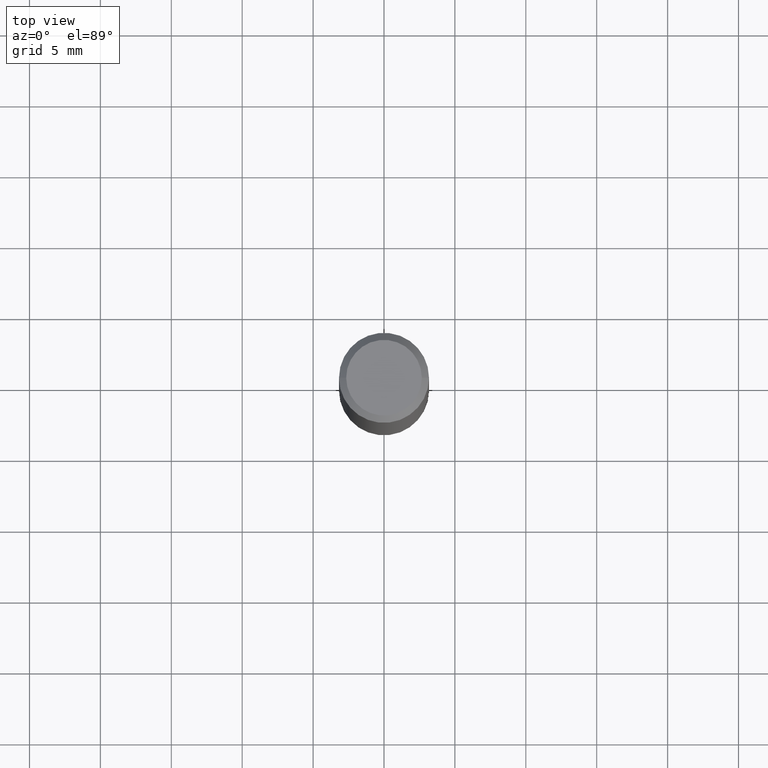
[diagram: clean part render]
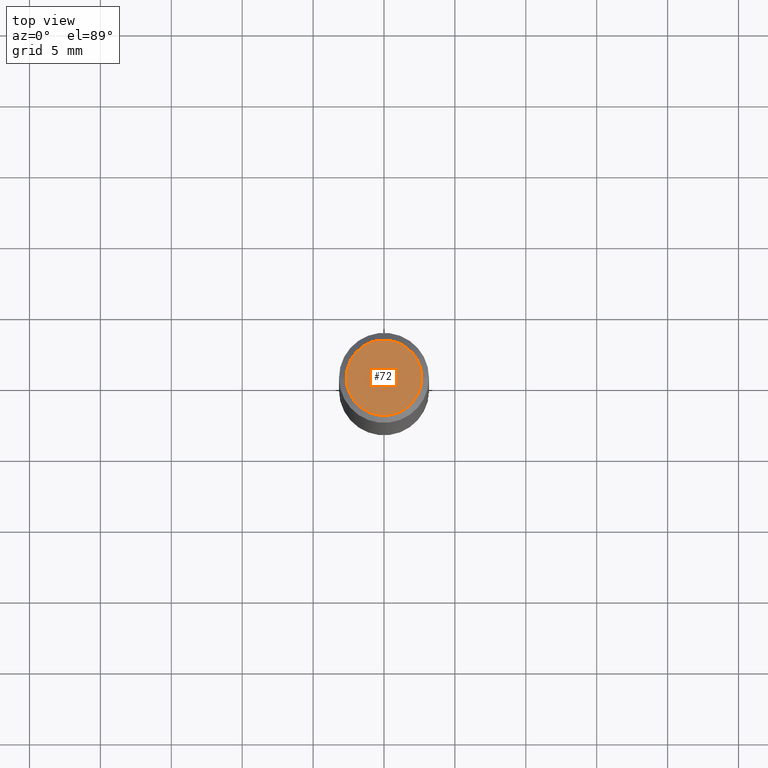
[diagram: same view with one face highlighted and labeled with its STEP entity id]
A machine part, top view. The second image highlights one B-rep face of the part: STEP entity #72.
In plain terms, the highlighted planar face has unit normal (0, -0, -1).
Its self-contained STEP definition (entity closure, byte-faithful):
#7 = DIRECTION ( 'NONE',  ( -2.445468806185136597E-29, 3.491481338843145583E-15, 1.000000000000000000 ) ) ;
#13 = PLANE ( 'NONE',  #358 ) ;
#46 = DIRECTION ( 'NONE',  ( 2.438088387897960049E-29, -3.491481338843145188E-15, -1.000000000000000000 ) ) ;
#49 = AXIS2_PLACEMENT_3D ( 'NONE', #281, #7, #228 ) ;
#50 = CIRCLE ( 'NONE', #49, 0.1049999999999998573 ) ;
#59 = CARTESIAN_POINT ( 'NONE',  ( 0.1049999999999998573, -8.238720831321564811E-16, 5.444276250344142358E-30 ) ) ;
#66 = VERTEX_POINT ( 'NONE', #59 ) ;
#72 = ADVANCED_FACE ( 'NONE', ( #292 ), #13, .F. ) ;
#89 = VERTEX_POINT ( 'NONE', #276 ) ;
#145 = ORIENTED_EDGE ( 'NONE', *, *, #252, .T. ) ;
#148 = EDGE_LOOP ( 'NONE', ( #344, #145 ) ) ;
#162 = AXIS2_PLACEMENT_3D ( 'NONE', #270, #307, #275 ) ;
#228 = DIRECTION ( 'NONE',  ( 1.000000000000000000, -6.982962677686265922E-15, 4.876176775795935232E-29 ) ) ;
#245 = DIRECTION ( 'NONE',  ( -1.000000000000000000, 6.982962677686265922E-15, -4.876176775795935793E-29 ) ) ;
#252 = EDGE_CURVE ( 'NONE', #66, #89, #288, .T. ) ;
#270 = CARTESIAN_POINT ( 'NONE',  ( 0.000000000000000000, 0.000000000000000000, 0.000000000000000000 ) ) ;
#275 = DIRECTION ( 'NONE',  ( 1.000000000000000000, -6.982962677686265922E-15, 4.876176775795935232E-29 ) ) ;
#276 = CARTESIAN_POINT ( 'NONE',  ( -0.1049999999999998573, 7.681258945454880957E-16, -5.249639473182158869E-30 ) ) ;
#281 = CARTESIAN_POINT ( 'NONE',  ( 0.000000000000000000, 0.000000000000000000, 0.000000000000000000 ) ) ;
#288 = CIRCLE ( 'NONE', #162, 0.1049999999999998573 ) ;
#292 = FACE_OUTER_BOUND ( 'NONE', #148, .T. ) ;
#307 = DIRECTION ( 'NONE',  ( -2.445468806185136597E-29, 3.491481338843145583E-15, 1.000000000000000000 ) ) ;
#323 = EDGE_CURVE ( 'NONE', #89, #66, #50, .T. ) ;
#344 = ORIENTED_EDGE ( 'NONE', *, *, #323, .T. ) ;
#358 = AXIS2_PLACEMENT_3D ( 'NONE', #366, #46, #245 ) ;
#366 = CARTESIAN_POINT ( 'NONE',  ( 7.332110811570569396E-16, 0.1049999999999998573, -3.666055405785298010E-16 ) ) ;